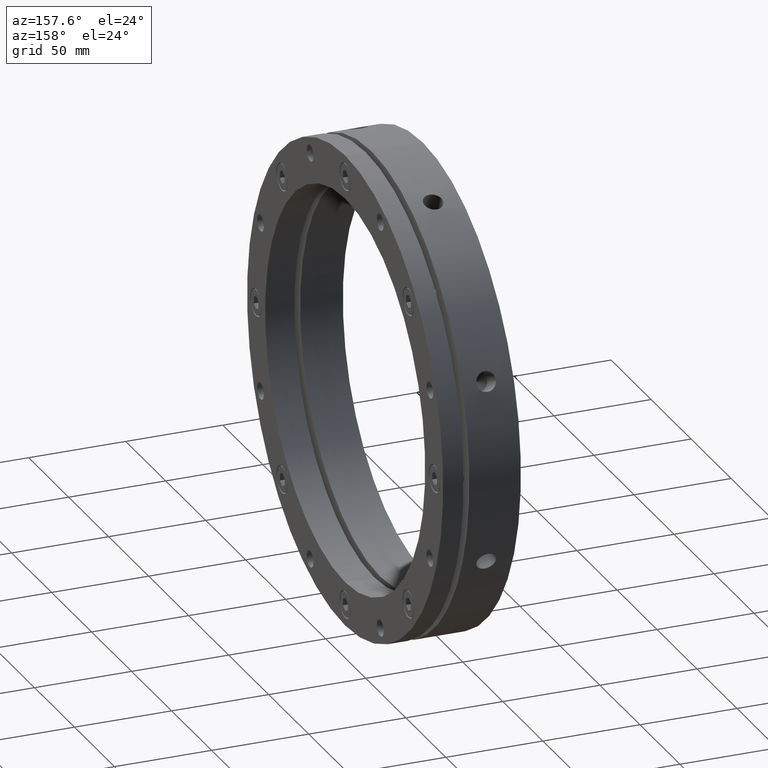
[diagram: clean part render]
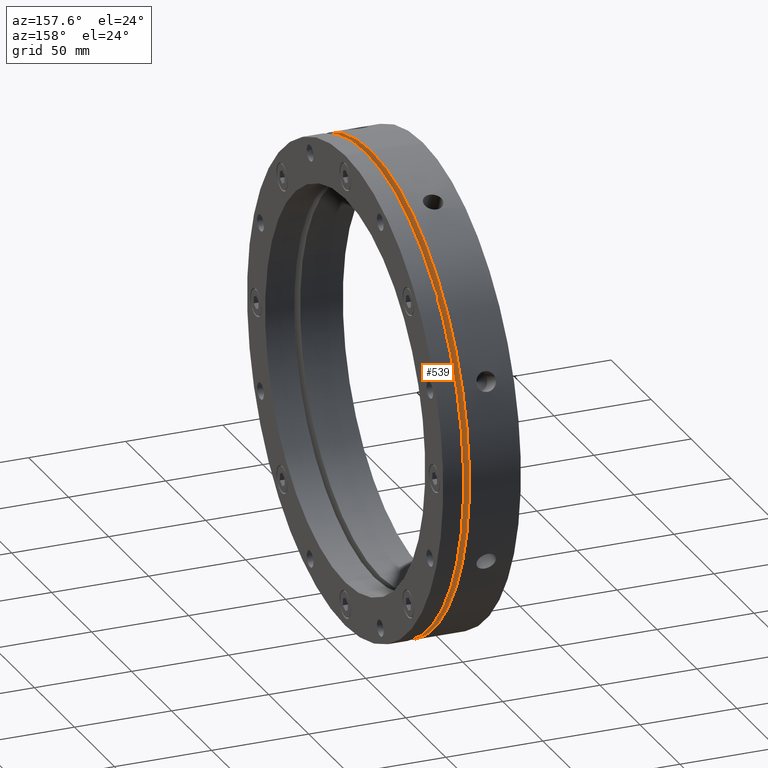
[diagram: same view with one face highlighted and labeled with its STEP entity id]
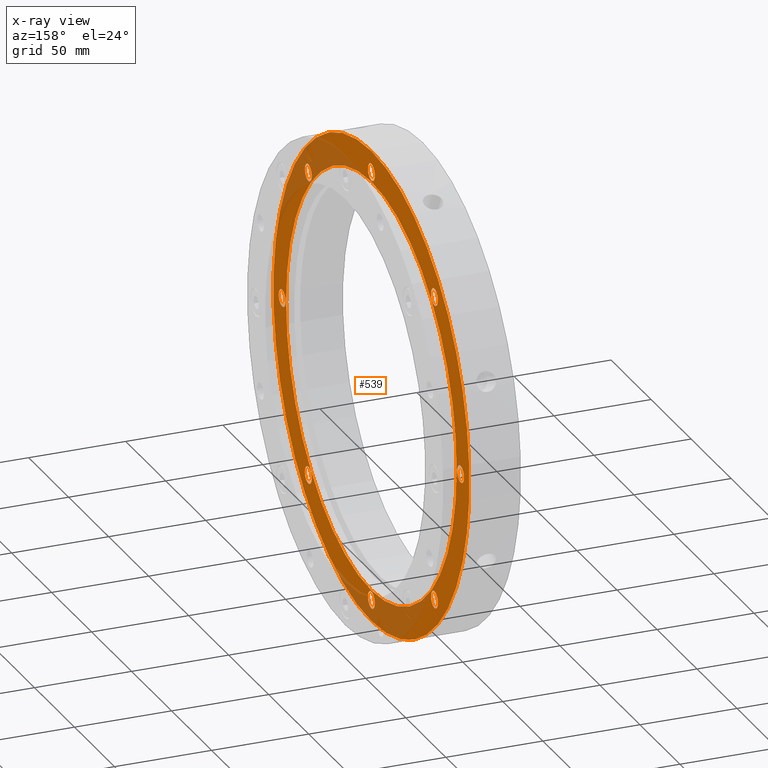
[diagram: x-ray of the same camera — body ghosted, the highlighted face saturated]
A machine part, auxiliary view. The second image highlights one B-rep face of the part: STEP entity #539.
The next image is the same camera in x-ray: the body ghosted, the highlighted face saturated — about 21% of this face is hidden behind the body in this view.
In plain terms, the highlighted planar face has unit normal (-1, 0, 0).
Its self-contained STEP definition (entity closure, byte-faithful):
#141 = AXIS2_PLACEMENT_3D ( 'NONE', #3619, #3620, #3621 ) ;
#288 = CIRCLE ( 'NONE', #1630, 122.5000000000000000 ) ;
#360 = CIRCLE ( 'NONE', #6008, 4.299999999999998000 ) ;
#361 = CIRCLE ( 'NONE', #6011, 4.299999999999998000 ) ;
#362 = CIRCLE ( 'NONE', #6009, 4.299999999999999800 ) ;
#364 = CIRCLE ( 'NONE', #6002, 4.299999999999999800 ) ;
#367 = CIRCLE ( 'NONE', #6005, 4.299999999999998000 ) ;
#374 = CIRCLE ( 'NONE', #6012, 4.299999999999998000 ) ;
#378 = CIRCLE ( 'NONE', #6016, 4.299999999999998000 ) ;
#379 = CIRCLE ( 'NONE', #6015, 106.5000000000000000 ) ;
#380 = CIRCLE ( 'NONE', #6013, 4.299999999999998000 ) ;
#387 = CIRCLE ( 'NONE', #6026, 4.299999999999998000 ) ;
#398 = CIRCLE ( 'NONE', #141, 4.299999999999998000 ) ;
#416 = CIRCLE ( 'NONE', #4845, 4.299999999999999800 ) ;
#418 = CIRCLE ( 'NONE', #4846, 4.299999999999998000 ) ;
#436 = CIRCLE ( 'NONE', #4817, 122.5000000000000000 ) ;
#539 = ADVANCED_FACE ( 'NONE', ( #4705, #4713, #4715, #4719, #4709, #4723, #4717, #4728, #4721, #4732 ), #2564, .F. ) ;
#658 = EDGE_CURVE ( 'NONE', #2031, #2995, #4545, .T. ) ;
#675 = EDGE_CURVE ( 'NONE', #2986, #2752, #436, .T. ) ;
#698 = EDGE_CURVE ( 'NONE', #1990, #1991, #416, .T. ) ;
#701 = EDGE_CURVE ( 'NONE', #2005, #2016, #418, .T. ) ;
#718 = EDGE_CURVE ( 'NONE', #2002, #2844, #398, .T. ) ;
#727 = EDGE_CURVE ( 'NONE', #2858, #2027, #387, .T. ) ;
#736 = EDGE_CURVE ( 'NONE', #2969, #2985, #378, .T. ) ;
#737 = EDGE_CURVE ( 'NONE', #1984, #2956, #379, .T. ) ;
#739 = EDGE_CURVE ( 'NONE', #2995, #2031, #380, .T. ) ;
#740 = EDGE_CURVE ( 'NONE', #2844, #2002, #374, .T. ) ;
#741 = EDGE_CURVE ( 'NONE', #2864, #2939, #361, .T. ) ;
#742 = EDGE_CURVE ( 'NONE', #2856, #2008, #362, .T. ) ;
#743 = EDGE_CURVE ( 'NONE', #2027, #2858, #360, .T. ) ;
#746 = EDGE_CURVE ( 'NONE', #2016, #2005, #367, .T. ) ;
#749 = EDGE_CURVE ( 'NONE', #1991, #1990, #364, .T. ) ;
#1162 = EDGE_CURVE ( 'NONE', #2752, #2986, #288, .T. ) ;
#1213 = CIRCLE ( 'NONE', #4473, 4.299999999999999800 ) ;
#1219 = CIRCLE ( 'NONE', #4472, 4.299999999999998000 ) ;
#1231 = CIRCLE ( 'NONE', #4470, 106.5000000000000000 ) ;
#1298 = CIRCLE ( 'NONE', #4478, 4.299999999999998000 ) ;
#1630 = AXIS2_PLACEMENT_3D ( 'NONE', #3873, #3874, #3875 ) ;
#1650 = ORIENTED_EDGE ( 'NONE', *, *, #3209, .F. ) ;
#1654 = ORIENTED_EDGE ( 'NONE', *, *, #3205, .F. ) ;
#1658 = ORIENTED_EDGE ( 'NONE', *, *, #658, .F. ) ;
#1662 = ORIENTED_EDGE ( 'NONE', *, *, #698, .F. ) ;
#1668 = ORIENTED_EDGE ( 'NONE', *, *, #701, .F. ) ;
#1672 = ORIENTED_EDGE ( 'NONE', *, *, #718, .F. ) ;
#1676 = ORIENTED_EDGE ( 'NONE', *, *, #727, .F. ) ;
#1680 = ORIENTED_EDGE ( 'NONE', *, *, #3202, .F. ) ;
#1684 = ORIENTED_EDGE ( 'NONE', *, *, #3190, .F. ) ;
#1686 = ORIENTED_EDGE ( 'NONE', *, *, #737, .F. ) ;
#1688 = ORIENTED_EDGE ( 'NONE', *, *, #1162, .F. ) ;
#1690 = ORIENTED_EDGE ( 'NONE', *, *, #736, .F. ) ;
#1694 = ORIENTED_EDGE ( 'NONE', *, *, #739, .F. ) ;
#1698 = ORIENTED_EDGE ( 'NONE', *, *, #749, .F. ) ;
#1702 = ORIENTED_EDGE ( 'NONE', *, *, #746, .F. ) ;
#1708 = ORIENTED_EDGE ( 'NONE', *, *, #743, .F. ) ;
#1709 = ORIENTED_EDGE ( 'NONE', *, *, #742, .F. ) ;
#1713 = ORIENTED_EDGE ( 'NONE', *, *, #740, .F. ) ;
#1729 = ORIENTED_EDGE ( 'NONE', *, *, #675, .F. ) ;
#1750 = ORIENTED_EDGE ( 'NONE', *, *, #741, .F. ) ;
#1984 = VERTEX_POINT ( 'NONE', #4112 ) ;
#1990 = VERTEX_POINT ( 'NONE', #4151 ) ;
#1991 = VERTEX_POINT ( 'NONE', #4155 ) ;
#2002 = VERTEX_POINT ( 'NONE', #4159 ) ;
#2005 = VERTEX_POINT ( 'NONE', #4163 ) ;
#2008 = VERTEX_POINT ( 'NONE', #4153 ) ;
#2016 = VERTEX_POINT ( 'NONE', #4166 ) ;
#2027 = VERTEX_POINT ( 'NONE', #4174 ) ;
#2031 = VERTEX_POINT ( 'NONE', #4175 ) ;
#2560 = DIRECTION ( 'NONE',  ( -1.000000000000000000, 0.0000000000000000000, 0.0000000000000000000 ) ) ;
#2562 = CARTESIAN_POINT ( 'NONE',  ( 26.49999999999996800, 114.5000000000000000, 0.0000000000000000000 ) ) ;
#2564 = PLANE ( 'NONE',  #5005 ) ;
#2567 = DIRECTION ( 'NONE',  ( 0.0000000000000000000, 0.0000000000000000000, 1.000000000000000000 ) ) ;
#2727 = EDGE_LOOP ( 'NONE', ( #1690, #1654 ) ) ;
#2735 = EDGE_LOOP ( 'NONE', ( #1686, #1650 ) ) ;
#2752 = VERTEX_POINT ( 'NONE', #4189 ) ;
#2760 = EDGE_LOOP ( 'NONE', ( #1698, #1662 ) ) ;
#2783 = EDGE_LOOP ( 'NONE', ( #1713, #1672 ) ) ;
#2786 = EDGE_LOOP ( 'NONE', ( #1708, #1676 ) ) ;
#2787 = EDGE_LOOP ( 'NONE', ( #1702, #1668 ) ) ;
#2791 = EDGE_LOOP ( 'NONE', ( #1694, #1658 ) ) ;
#2795 = EDGE_LOOP ( 'NONE', ( #1750, #1684 ) ) ;
#2796 = EDGE_LOOP ( 'NONE', ( #1729, #1688 ) ) ;
#2797 = EDGE_LOOP ( 'NONE', ( #1709, #1680 ) ) ;
#2844 = VERTEX_POINT ( 'NONE', #4238 ) ;
#2856 = VERTEX_POINT ( 'NONE', #4249 ) ;
#2858 = VERTEX_POINT ( 'NONE', #4251 ) ;
#2864 = VERTEX_POINT ( 'NONE', #4257 ) ;
#2939 = VERTEX_POINT ( 'NONE', #4371 ) ;
#2956 = VERTEX_POINT ( 'NONE', #5056 ) ;
#2969 = VERTEX_POINT ( 'NONE', #5069 ) ;
#2985 = VERTEX_POINT ( 'NONE', #5085 ) ;
#2986 = VERTEX_POINT ( 'NONE', #5086 ) ;
#2995 = VERTEX_POINT ( 'NONE', #5095 ) ;
#3190 = EDGE_CURVE ( 'NONE', #2939, #2864, #1298, .T. ) ;
#3202 = EDGE_CURVE ( 'NONE', #2008, #2856, #1213, .T. ) ;
#3205 = EDGE_CURVE ( 'NONE', #2985, #2969, #1219, .T. ) ;
#3209 = EDGE_CURVE ( 'NONE', #2956, #1984, #1231, .T. ) ;
#3340 = CARTESIAN_POINT ( 'NONE',  ( 26.49999999999996800, -78.84240610230004600, 78.84240610230006000 ) ) ;
#3341 = DIRECTION ( 'NONE',  ( 1.000000000000000000, 0.0000000000000000000, 0.0000000000000000000 ) ) ;
#3342 = DIRECTION ( 'NONE',  ( 0.0000000000000000000, 0.0000000000000000000, -1.000000000000000000 ) ) ;
#3421 = CARTESIAN_POINT ( 'NONE',  ( 26.49999999999996800, 0.0000000000000000000, 0.0000000000000000000 ) ) ;
#3422 = DIRECTION ( 'NONE',  ( -1.000000000000000000, -0.0000000000000000000, -0.0000000000000000000 ) ) ;
#3423 = DIRECTION ( 'NONE',  ( 0.0000000000000000000, 0.0000000000000000000, -1.000000000000000000 ) ) ;
#3560 = CARTESIAN_POINT ( 'NONE',  ( 26.49999999999996800, -111.5000000000000000, 0.0000000000000000000 ) ) ;
#3561 = DIRECTION ( 'NONE',  ( 1.000000000000000000, 0.0000000000000000000, 0.0000000000000000000 ) ) ;
#3562 = DIRECTION ( 'NONE',  ( 0.0000000000000000000, 0.0000000000000000000, -1.000000000000000000 ) ) ;
#3567 = CARTESIAN_POINT ( 'NONE',  ( 26.49999999999996800, -78.84240610230006000, -78.84240610230004600 ) ) ;
#3568 = DIRECTION ( 'NONE',  ( 1.000000000000000000, 0.0000000000000000000, 0.0000000000000000000 ) ) ;
#3569 = DIRECTION ( 'NONE',  ( 0.0000000000000000000, 0.0000000000000000000, -1.000000000000000000 ) ) ;
#3619 = CARTESIAN_POINT ( 'NONE',  ( 26.49999999999996800, -1.776356999999999900E-014, -111.5000000000000000 ) ) ;
#3620 = DIRECTION ( 'NONE',  ( 1.000000000000000000, 0.0000000000000000000, 0.0000000000000000000 ) ) ;
#3621 = DIRECTION ( 'NONE',  ( 0.0000000000000000000, 0.0000000000000000000, -1.000000000000000000 ) ) ;
#3678 = CARTESIAN_POINT ( 'NONE',  ( 26.49999999999996800, 78.84240610230003200, -78.84240610230006000 ) ) ;
#3679 = DIRECTION ( 'NONE',  ( 1.000000000000000000, 0.0000000000000000000, 0.0000000000000000000 ) ) ;
#3680 = DIRECTION ( 'NONE',  ( 0.0000000000000000000, 0.0000000000000000000, -1.000000000000000000 ) ) ;
#3702 = CARTESIAN_POINT ( 'NONE',  ( 26.49999999999996800, 0.0000000000000000000, 111.5000000000000000 ) ) ;
#3703 = DIRECTION ( 'NONE',  ( 1.000000000000000000, 0.0000000000000000000, 0.0000000000000000000 ) ) ;
#3704 = DIRECTION ( 'NONE',  ( 0.0000000000000000000, 0.0000000000000000000, -1.000000000000000000 ) ) ;
#3705 = CARTESIAN_POINT ( 'NONE',  ( 26.49999999999996800, 0.0000000000000000000, 0.0000000000000000000 ) ) ;
#3706 = DIRECTION ( 'NONE',  ( 1.000000000000000000, -0.0000000000000000000, -0.0000000000000000000 ) ) ;
#3707 = DIRECTION ( 'NONE',  ( 0.0000000000000000000, 0.0000000000000000000, 1.000000000000000000 ) ) ;
#3711 = CARTESIAN_POINT ( 'NONE',  ( 26.49999999999996800, -78.84240610230004600, 78.84240610230006000 ) ) ;
#3712 = DIRECTION ( 'NONE',  ( 1.000000000000000000, 0.0000000000000000000, 0.0000000000000000000 ) ) ;
#3713 = DIRECTION ( 'NONE',  ( 0.0000000000000000000, 0.0000000000000000000, -1.000000000000000000 ) ) ;
#3714 = CARTESIAN_POINT ( 'NONE',  ( 26.49999999999996800, -1.776356999999999900E-014, -111.5000000000000000 ) ) ;
#3715 = DIRECTION ( 'NONE',  ( 1.000000000000000000, 0.0000000000000000000, 0.0000000000000000000 ) ) ;
#3716 = DIRECTION ( 'NONE',  ( 0.0000000000000000000, 0.0000000000000000000, -1.000000000000000000 ) ) ;
#3717 = CARTESIAN_POINT ( 'NONE',  ( 26.49999999999996800, 78.84240610230007500, 78.84240610230003200 ) ) ;
#3718 = DIRECTION ( 'NONE',  ( 1.000000000000000000, 0.0000000000000000000, 0.0000000000000000000 ) ) ;
#3719 = DIRECTION ( 'NONE',  ( 0.0000000000000000000, 0.0000000000000000000, -1.000000000000000000 ) ) ;
#3720 = CARTESIAN_POINT ( 'NONE',  ( 26.49999999999996800, 111.5000000000000000, -1.776356999999999900E-014 ) ) ;
#3721 = DIRECTION ( 'NONE',  ( 1.000000000000000000, 0.0000000000000000000, 0.0000000000000000000 ) ) ;
#3722 = DIRECTION ( 'NONE',  ( 0.0000000000000000000, 0.0000000000000000000, -1.000000000000000000 ) ) ;
#3723 = CARTESIAN_POINT ( 'NONE',  ( 26.49999999999996800, 78.84240610230003200, -78.84240610230006000 ) ) ;
#3724 = DIRECTION ( 'NONE',  ( 1.000000000000000000, 0.0000000000000000000, 0.0000000000000000000 ) ) ;
#3725 = DIRECTION ( 'NONE',  ( 0.0000000000000000000, 0.0000000000000000000, -1.000000000000000000 ) ) ;
#3732 = CARTESIAN_POINT ( 'NONE',  ( 26.49999999999996800, -78.84240610230006000, -78.84240610230004600 ) ) ;
#3733 = DIRECTION ( 'NONE',  ( 1.000000000000000000, 0.0000000000000000000, 0.0000000000000000000 ) ) ;
#3734 = DIRECTION ( 'NONE',  ( 0.0000000000000000000, 0.0000000000000000000, -1.000000000000000000 ) ) ;
#3742 = CARTESIAN_POINT ( 'NONE',  ( 26.49999999999996800, -111.5000000000000000, 0.0000000000000000000 ) ) ;
#3743 = DIRECTION ( 'NONE',  ( 1.000000000000000000, 0.0000000000000000000, 0.0000000000000000000 ) ) ;
#3744 = DIRECTION ( 'NONE',  ( 0.0000000000000000000, 0.0000000000000000000, -1.000000000000000000 ) ) ;
#3873 = CARTESIAN_POINT ( 'NONE',  ( 26.49999999999996800, 0.0000000000000000000, 0.0000000000000000000 ) ) ;
#3874 = DIRECTION ( 'NONE',  ( -1.000000000000000000, -0.0000000000000000000, -0.0000000000000000000 ) ) ;
#3875 = DIRECTION ( 'NONE',  ( 0.0000000000000000000, 0.0000000000000000000, -1.000000000000000000 ) ) ;
#4112 = CARTESIAN_POINT ( 'NONE',  ( 26.49999999999996800, 0.0000000000000000000, 106.5000000000000000 ) ) ;
#4151 = CARTESIAN_POINT ( 'NONE',  ( 26.49999999999996800, -111.5000000000000000, 4.299999999999999800 ) ) ;
#4153 = CARTESIAN_POINT ( 'NONE',  ( 26.49999999999996800, 111.5000000000000000, 4.299999999999982900 ) ) ;
#4155 = CARTESIAN_POINT ( 'NONE',  ( 26.49999999999996800, -111.5000000000000000, -4.299999999999999800 ) ) ;
#4159 = CARTESIAN_POINT ( 'NONE',  ( 26.49999999999996800, -1.723697187636663600E-014, -107.2000000000000000 ) ) ;
#4163 = CARTESIAN_POINT ( 'NONE',  ( 26.49999999999996800, -78.84240610230006000, -74.54240610230004900 ) ) ;
#4166 = CARTESIAN_POINT ( 'NONE',  ( 26.49999999999996800, -78.84240610230006000, -83.14240610230004300 ) ) ;
#4174 = CARTESIAN_POINT ( 'NONE',  ( 26.49999999999996800, 78.84240610230003200, -83.14240610230005800 ) ) ;
#4175 = CARTESIAN_POINT ( 'NONE',  ( 26.49999999999996800, -78.84240610230004600, 83.14240610230005800 ) ) ;
#4189 = CARTESIAN_POINT ( 'NONE',  ( 26.49999999999996800, 1.500192328955507800E-014, 122.5000000000000000 ) ) ;
#4238 = CARTESIAN_POINT ( 'NONE',  ( 26.49999999999996800, -1.776356999999999900E-014, -115.8000000000000000 ) ) ;
#4249 = CARTESIAN_POINT ( 'NONE',  ( 26.49999999999996800, 111.5000000000000000, -4.300000000000017600 ) ) ;
#4251 = CARTESIAN_POINT ( 'NONE',  ( 26.49999999999996800, 78.84240610230003200, -74.54240610230006300 ) ) ;
#4257 = CARTESIAN_POINT ( 'NONE',  ( 26.49999999999996800, 78.84240610230007500, 74.54240610230003500 ) ) ;
#4371 = CARTESIAN_POINT ( 'NONE',  ( 26.49999999999996800, 78.84240610230007500, 83.14240610230002900 ) ) ;
#4470 = AXIS2_PLACEMENT_3D ( 'NONE', #5755, #5756, #5757 ) ;
#4472 = AXIS2_PLACEMENT_3D ( 'NONE', #5745, #5746, #5747 ) ;
#4473 = AXIS2_PLACEMENT_3D ( 'NONE', #5737, #5738, #5739 ) ;
#4478 = AXIS2_PLACEMENT_3D ( 'NONE', #5707, #5708, #5709 ) ;
#4545 = CIRCLE ( 'NONE', #4812, 4.299999999999998000 ) ;
#4705 = FACE_BOUND ( 'NONE', #2735, .T. ) ;
#4709 = FACE_BOUND ( 'NONE', #2787, .T. ) ;
#4713 = FACE_BOUND ( 'NONE', #2727, .T. ) ;
#4715 = FACE_BOUND ( 'NONE', #2791, .T. ) ;
#4717 = FACE_BOUND ( 'NONE', #2786, .T. ) ;
#4719 = FACE_BOUND ( 'NONE', #2760, .T. ) ;
#4721 = FACE_BOUND ( 'NONE', #2795, .T. ) ;
#4723 = FACE_BOUND ( 'NONE', #2783, .T. ) ;
#4728 = FACE_BOUND ( 'NONE', #2797, .T. ) ;
#4732 = FACE_OUTER_BOUND ( 'NONE', #2796, .T. ) ;
#4812 = AXIS2_PLACEMENT_3D ( 'NONE', #3340, #3341, #3342 ) ;
#4817 = AXIS2_PLACEMENT_3D ( 'NONE', #3421, #3422, #3423 ) ;
#4845 = AXIS2_PLACEMENT_3D ( 'NONE', #3560, #3561, #3562 ) ;
#4846 = AXIS2_PLACEMENT_3D ( 'NONE', #3567, #3568, #3569 ) ;
#5005 = AXIS2_PLACEMENT_3D ( 'NONE', #2562, #2560, #2567 ) ;
#5056 = CARTESIAN_POINT ( 'NONE',  ( 26.49999999999996800, 1.304248841091931200E-014, -106.5000000000000000 ) ) ;
#5069 = CARTESIAN_POINT ( 'NONE',  ( 26.49999999999996800, 0.0000000000000000000, 107.2000000000000000 ) ) ;
#5085 = CARTESIAN_POINT ( 'NONE',  ( 26.49999999999996800, 5.265981236333620400E-016, 115.8000000000000000 ) ) ;
#5086 = CARTESIAN_POINT ( 'NONE',  ( 26.49999999999996800, 0.0000000000000000000, -122.5000000000000000 ) ) ;
#5095 = CARTESIAN_POINT ( 'NONE',  ( 26.49999999999996800, -78.84240610230004600, 74.54240610230006300 ) ) ;
#5707 = CARTESIAN_POINT ( 'NONE',  ( 26.49999999999996800, 78.84240610230007500, 78.84240610230003200 ) ) ;
#5708 = DIRECTION ( 'NONE',  ( 1.000000000000000000, 0.0000000000000000000, 0.0000000000000000000 ) ) ;
#5709 = DIRECTION ( 'NONE',  ( 0.0000000000000000000, 0.0000000000000000000, -1.000000000000000000 ) ) ;
#5737 = CARTESIAN_POINT ( 'NONE',  ( 26.49999999999996800, 111.5000000000000000, -1.776356999999999900E-014 ) ) ;
#5738 = DIRECTION ( 'NONE',  ( 1.000000000000000000, 0.0000000000000000000, 0.0000000000000000000 ) ) ;
#5739 = DIRECTION ( 'NONE',  ( 0.0000000000000000000, 0.0000000000000000000, -1.000000000000000000 ) ) ;
#5745 = CARTESIAN_POINT ( 'NONE',  ( 26.49999999999996800, 0.0000000000000000000, 111.5000000000000000 ) ) ;
#5746 = DIRECTION ( 'NONE',  ( 1.000000000000000000, 0.0000000000000000000, 0.0000000000000000000 ) ) ;
#5747 = DIRECTION ( 'NONE',  ( 0.0000000000000000000, 0.0000000000000000000, -1.000000000000000000 ) ) ;
#5755 = CARTESIAN_POINT ( 'NONE',  ( 26.49999999999996800, 0.0000000000000000000, 0.0000000000000000000 ) ) ;
#5756 = DIRECTION ( 'NONE',  ( 1.000000000000000000, -0.0000000000000000000, -0.0000000000000000000 ) ) ;
#5757 = DIRECTION ( 'NONE',  ( 0.0000000000000000000, 0.0000000000000000000, 1.000000000000000000 ) ) ;
#6002 = AXIS2_PLACEMENT_3D ( 'NONE', #3742, #3743, #3744 ) ;
#6005 = AXIS2_PLACEMENT_3D ( 'NONE', #3732, #3733, #3734 ) ;
#6008 = AXIS2_PLACEMENT_3D ( 'NONE', #3723, #3724, #3725 ) ;
#6009 = AXIS2_PLACEMENT_3D ( 'NONE', #3720, #3721, #3722 ) ;
#6011 = AXIS2_PLACEMENT_3D ( 'NONE', #3717, #3718, #3719 ) ;
#6012 = AXIS2_PLACEMENT_3D ( 'NONE', #3714, #3715, #3716 ) ;
#6013 = AXIS2_PLACEMENT_3D ( 'NONE', #3711, #3712, #3713 ) ;
#6015 = AXIS2_PLACEMENT_3D ( 'NONE', #3705, #3706, #3707 ) ;
#6016 = AXIS2_PLACEMENT_3D ( 'NONE', #3702, #3703, #3704 ) ;
#6026 = AXIS2_PLACEMENT_3D ( 'NONE', #3678, #3679, #3680 ) ;